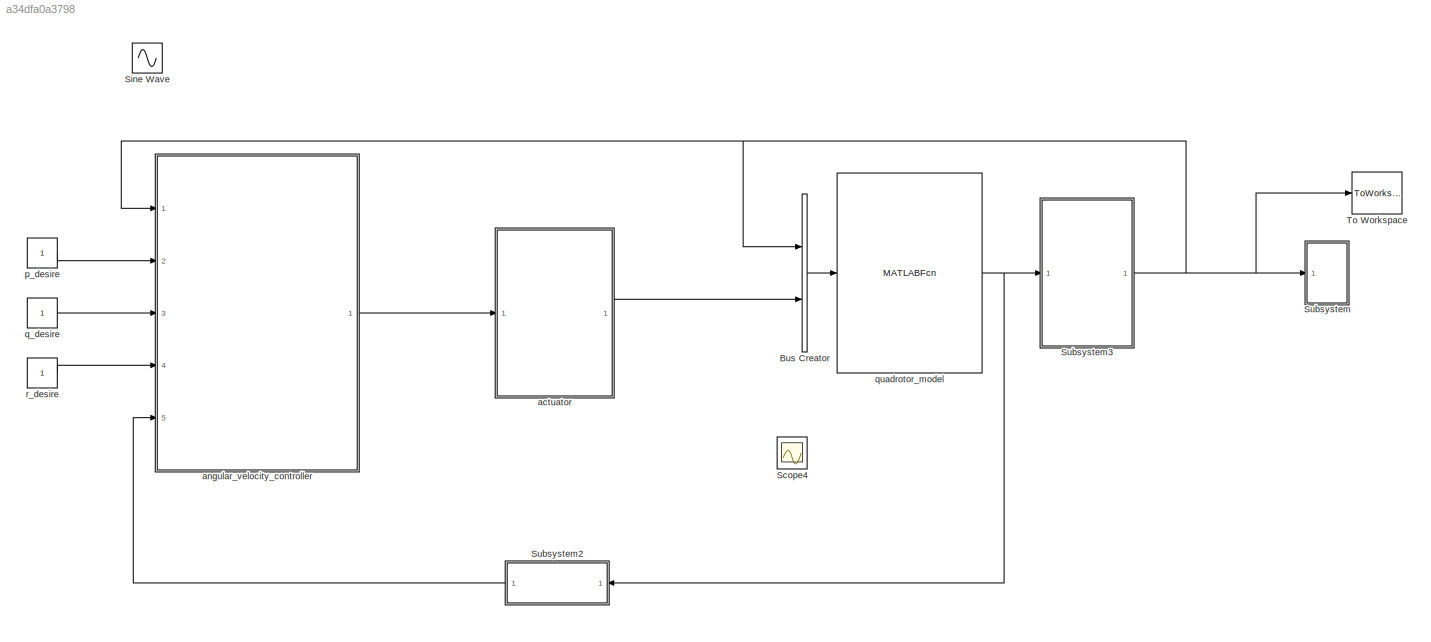
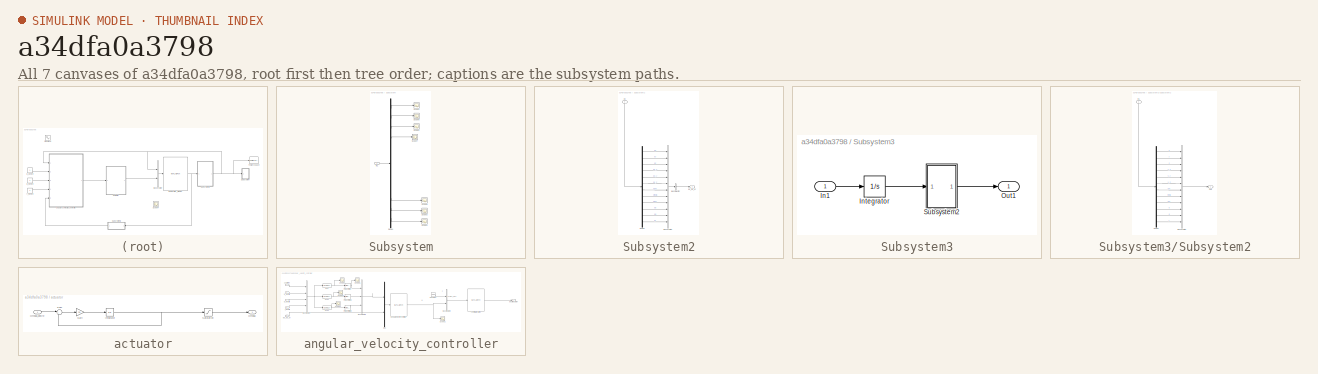
[diagram: thumbnail index - all 7 canvases of the model, root first then tree order]
MODEL slx_a34dfa0a3798
KIND model
CONFIG AbsTol = auto
CONFIG EnableMultiTasking = on
CONFIG FixedStep = auto
CONFIG MaxStep = auto
CONFIG MinStep = auto
CONFIG RelTol = 1e-3
CONFIG SampleTimeConstraint = Unconstrained
CONFIG Solver = ode45
CONFIG SolverName = ode45
CONFIG StartTime = 0.0
CONFIG StopTime = 20
BLOCK [BusCreator] Bus Creator
  DisplayOption = bar
  Inputs = 2
  Ports = [2, 1]
BLOCK [Scope] Scope4
  Floating = off
  NumInputPorts = 1
  Ports = [1]
  ShowLegends = off
  YMax = 4600
  YMin = 4200
BLOCK [Sin] Sine Wave
  Frequency = 10
  Ports = [0, 1]
  SampleTime = 0
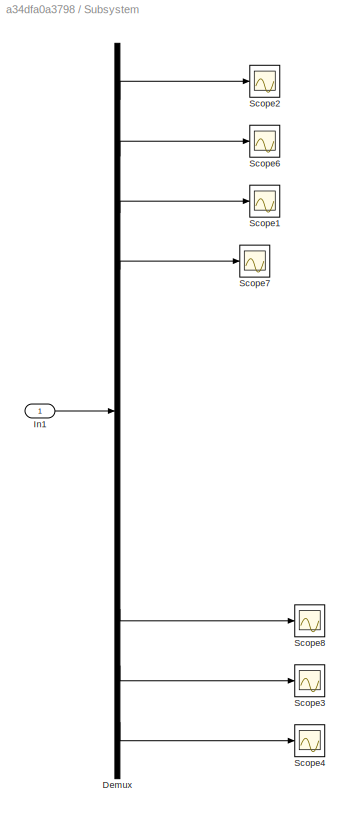
BLOCK [SubSystem] Subsystem
  Ports = [1]
  RequestExecContextInheritance = off
BLOCK [Demux] Subsystem/Demux
  DisplayOption = bar
  Outputs = 12
  Ports = [1, 12]
BLOCK [Inport] Subsystem/In1
  IconDisplay = Port number
BLOCK [Scope] Subsystem/Scope1
  Floating = off
  NumInputPorts = 1
  Ports = [1]
  ShowLegends = off
BLOCK [Scope] Subsystem/Scope2
  Floating = off
  NumInputPorts = 1
  Ports = [1]
  ShowLegends = off
BLOCK [Scope] Subsystem/Scope3
  Floating = off
  NumInputPorts = 1
  Ports = [1]
  ShowLegends = off
BLOCK [Scope] Subsystem/Scope4
  Floating = off
  NumInputPorts = 1
  Ports = [1]
  ShowLegends = off
  YMax = 1.3
  YMin = 0.7
BLOCK [Scope] Subsystem/Scope6
  Floating = off
  NumInputPorts = 1
  Ports = [1]
  ShowLegends = off
BLOCK [Scope] Subsystem/Scope7
  Floating = off
  NumInputPorts = 1
  Ports = [1]
  ShowLegends = off
BLOCK [Scope] Subsystem/Scope8
  Floating = off
  NumInputPorts = 1
  Ports = [1]
  ShowLegends = off
  YMax = 1
  YMin = 0
BLOCK [SubSystem] Subsystem2
  Ports = [1, 1]
  RequestExecContextInheritance = off
BLOCK [BusCreator] Subsystem2/Bus Creator
  DisplayOption = bar
  Inputs = 12
  Ports = [12, 1]
BLOCK [BusSelector] Subsystem2/Bus Selector
  OutputAsBus = on
  OutputSignals = dp,dq,dr
  Ports = [1, 1]
BLOCK [Demux] Subsystem2/Demux
  DisplayOption = bar
  Outputs = 12
  Ports = [1, 12]
BLOCK [Outport] Subsystem2/dp_dq_dr
  IconDisplay = Port number
BLOCK [Inport] Subsystem2/dx
  IconDisplay = Port number
BLOCK [SubSystem] Subsystem3
  Ports = [1, 1]
  RequestExecContextInheritance = off
BLOCK [Inport] Subsystem3/In1
  IconDisplay = Port number
BLOCK [Integrator] Subsystem3/Integrator
  InitialCondition = state_initial
  Ports = [1, 1]
BLOCK [Outport] Subsystem3/Out1
  IconDisplay = Port number
BLOCK [SubSystem] Subsystem3/Subsystem2
  Ports = [1, 1]
  RequestExecContextInheritance = off
BLOCK [BusCreator] Subsystem3/Subsystem2/Bus Creator
  DisplayOption = bar
  Inputs = 12
  Ports = [12, 1]
BLOCK [Demux] Subsystem3/Subsystem2/Demux
  DisplayOption = bar
  Outputs = 12
  Ports = [1, 12]
BLOCK [Inport] Subsystem3/Subsystem2/In1
  IconDisplay = Port number
BLOCK [Outport] Subsystem3/Subsystem2/Out1
  IconDisplay = Port number
BLOCK [ToWorkspace] To Workspace
  MaxDataPoints = inf
  Ports = [1]
  SampleTime = -1
  Save2DSignal = 2-D array (concatenate along first dimension)
  VariableName = local_state
BLOCK [SubSystem] actuator
  Ports = [1, 1]
  RequestExecContextInheritance = off
BLOCK [Gain] actuator/Gain
  Gain = 20
  OutDataTypeStr = Inherit: Inherit via internal rule
  ParamDataTypeStr = Inherit: Inherit via internal rule
  SaturateOnIntegerOverflow = off
BLOCK [Integrator] actuator/Integrator
  InitialCondition = [4477,4477,4477,4477]
  Ports = [1, 1]
BLOCK [Outport] actuator/Omega
  IconDisplay = Port number
BLOCK [Inport] actuator/Omega_desire
  IconDisplay = Port number
BLOCK [Saturate] actuator/Saturation
  InputPortMap = u0
  LowerLimit = 0
  Ports = [1, 1]
  UpperLimit = 10000
BLOCK [Sum] actuator/Sum
  IconShape = round
  InputSameDT = off
  Inputs = |+-
  OutDataTypeStr = Inherit: Inherit via internal rule
  Ports = [2, 1]
  SaturateOnIntegerOverflow = off
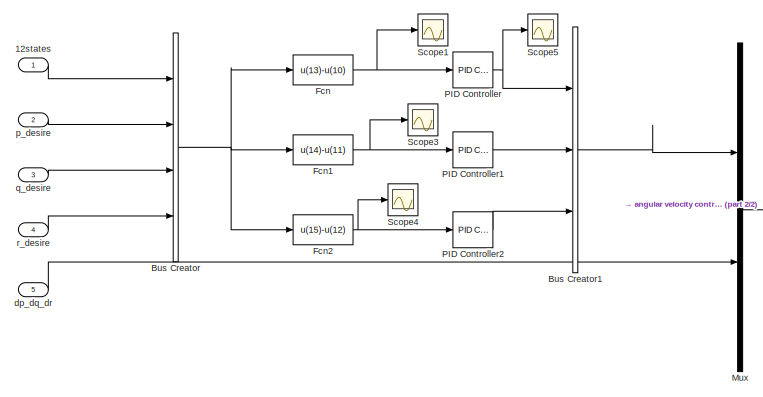
[diagram: angular_velocity_controller - part 1/2, left side, full height]
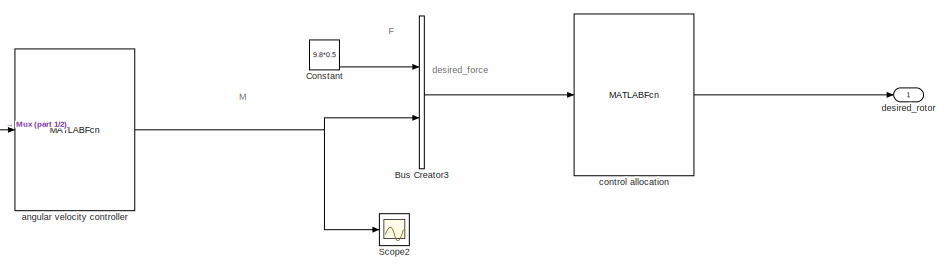
[diagram: angular_velocity_controller - part 2/2, middle right region]
BLOCK [SubSystem] angular_velocity_controller
  Ports = [5, 1]
  RequestExecContextInheritance = off
BLOCK [Inport] angular_velocity_controller/12states
  IconDisplay = Port number
BLOCK [BusCreator] angular_velocity_controller/Bus Creator
  DisplayOption = bar
  Ports = [4, 1]
BLOCK [BusCreator] angular_velocity_controller/Bus Creator1
  DisplayOption = bar
  Inputs = 3
  Ports = [3, 1]
BLOCK [BusCreator] angular_velocity_controller/Bus Creator3
  DisplayOption = bar
  Inputs = 2
  Ports = [2, 1]
BLOCK [Constant] angular_velocity_controller/Constant
  Value = 9.8*0.5
BLOCK [Fcn] angular_velocity_controller/Fcn
  Expr = u(13)-u(10)
BLOCK [Fcn] angular_velocity_controller/Fcn1
  Expr = u(14)-u(11)
BLOCK [Fcn] angular_velocity_controller/Fcn2
  Expr = u(15)-u(12)
BLOCK [Mux] angular_velocity_controller/Mux
  DisplayOption = bar
  Inputs = 2
  Ports = [2, 1]
BLOCK [Reference] angular_velocity_controller/PID Controller  REF=simulink/Continuous/PID Controller
  AntiWindupMode = none
  Controller = PID
  D = k_d_angular_velocity_p
  DOutDataTypeStr = Inherit: Inherit via internal rule
  DOutMax = []
  DOutMin = []
  DParamDataTypeStr = Inherit: Inherit via internal rule
  DParamMax = []
  DParamMin = []
  DifferentiatorICPrevScaledInput = 0
  DifferentiatorOutDataTypeStr = Inherit: Inherit via internal rule
  DifferentiatorOutMax = []
  DifferentiatorOutMin = []
  ExternalReset = none
  FilterContinuousStateAttributes = ''
  FilterMethod = Forward Euler
  FilterOutDataTypeStr = Inherit: Inherit via internal rule
  FilterOutMax = []
  FilterOutMin = []
  FilterRTWStateStorageClass = Auto
  FilterStateMustResolveToSignalObject = off
  Form = Parallel
  I = k_i_angular_velocity_p
  IOutDataTypeStr = Inherit: Inherit via internal rule
  IOutMax = []
  IOutMin = []
  IParamDataTypeStr = Inherit: Inherit via internal rule
  IParamMax = []
  IParamMin = []
  IgnoreLimit = off
  InitialConditionForFilter = 0
  InitialConditionForIntegrator = 0
  InitialConditionSource = internal
  IntegratorContinuousStateAttributes = ''
  IntegratorMethod = Forward Euler
  IntegratorOutDataTypeStr = Inherit: Inherit via internal rule
  IntegratorOutMax = []
  IntegratorOutMin = []
  IntegratorRTWStateStorageClass = Auto
  IntegratorStateMustResolveToSignalObject = off
  Kb = 1
  KbOutDataTypeStr = Inherit: Inherit via internal rule
  KbOutMax = []
  KbOutMin = []
  KbParamDataTypeStr = Inherit: Inherit via internal rule
  KbParamMax = []
  KbParamMin = []
  Kt = 1
  KtOutDataTypeStr = Inherit: Inherit via internal rule
  KtOutMax = []
  KtOutMin = []
  KtParamDataTypeStr = Inherit: Inherit via internal rule
  KtParamMax = []
  KtParamMin = []
  LimitOutput = off
  LinearizeAsGain = on
  LockScale = off
  LowerSaturationLimit = -inf
  N = 100
  NOutDataTypeStr = Inherit: Inherit via internal rule
  NOutMax = []
  NOutMin = []
  NParamDataTypeStr = Inherit: Inherit via internal rule
  NParamMax = []
  NParamMin = []
  P = k_p_angular_velocity_p
  POutDataTypeStr = Inherit: Inherit via internal rule
  POutMax = []
  POutMin = []
  PParamDataTypeStr = Inherit: Inherit via internal rule
  PParamMax = []
  PParamMin = []
  Ports = [1, 1]
  RndMeth = Floor
  SampleTime = -1
  SaturateOnIntegerOverflow = off
  SaturationOutDataTypeStr = Inherit: Same as input
  SaturationOutMax = []
  SaturationOutMin = []
  SourceBlock = simulink/Continuous/PID Controller
  SourceType = PID 1dof
  SumAccumDataTypeStr = Inherit: Inherit via internal rule
  SumDAccumDataTypeStr = Inherit: Inherit via internal rule
  SumDOutDataTypeStr = Inherit: Inherit via internal rule
  SumDOutMax = []
  SumDOutMin = []
  SumI1AccumDataTypeStr = Inherit: Inherit via internal rule
  SumI1OutDataTypeStr = Inherit: Inherit via internal rule
  SumI1OutMax = []
  SumI1OutMin = []
  SumI2AccumDataTypeStr = Inherit: Inherit via internal rule
  SumI2OutDataTypeStr = Inherit: Inherit via internal rule
  SumI2OutMax = []
  SumI2OutMin = []
  SumI3AccumDataTypeStr = Inherit: Inherit via internal rule
  SumI3OutDataTypeStr = Inherit: Inherit via internal rule
  SumI3OutMax = []
  SumI3OutMin = []
  SumOutDataTypeStr = Inherit: Inherit via internal rule
  SumOutMax = []
  SumOutMin = []
  TimeDomain = Continuous-time
  TrackingMode = off
  UpperSaturationLimit = inf
  UseFilter = on
  ZeroCross = on
BLOCK [Reference] angular_velocity_controller/PID Controller1  REF=simulink/Continuous/PID Controller
  AntiWindupMode = none
  Controller = PID
  D = k_d_angular_velocity_q
  DOutDataTypeStr = Inherit: Inherit via internal rule
  DOutMax = []
  DOutMin = []
  DParamDataTypeStr = Inherit: Inherit via internal rule
  DParamMax = []
  DParamMin = []
  DifferentiatorICPrevScaledInput = 0
  DifferentiatorOutDataTypeStr = Inherit: Inherit via internal rule
  DifferentiatorOutMax = []
  DifferentiatorOutMin = []
  ExternalReset = none
  FilterContinuousStateAttributes = ''
  FilterMethod = Forward Euler
  FilterOutDataTypeStr = Inherit: Inherit via internal rule
  FilterOutMax = []
  FilterOutMin = []
  FilterRTWStateStorageClass = Auto
  FilterStateMustResolveToSignalObject = off
  Form = Parallel
  I = k_i_angular_velocity_q
  IOutDataTypeStr = Inherit: Inherit via internal rule
  IOutMax = []
  IOutMin = []
  IParamDataTypeStr = Inherit: Inherit via internal rule
  IParamMax = []
  IParamMin = []
  IgnoreLimit = off
  InitialConditionForFilter = 0
  InitialConditionForIntegrator = 0
  InitialConditionSource = internal
  IntegratorContinuousStateAttributes = ''
  IntegratorMethod = Forward Euler
  IntegratorOutDataTypeStr = Inherit: Inherit via internal rule
  IntegratorOutMax = []
  IntegratorOutMin = []
  IntegratorRTWStateStorageClass = Auto
  IntegratorStateMustResolveToSignalObject = off
  Kb = 1
  KbOutDataTypeStr = Inherit: Inherit via internal rule
  KbOutMax = []
  KbOutMin = []
  KbParamDataTypeStr = Inherit: Inherit via internal rule
  KbParamMax = []
  KbParamMin = []
  Kt = 1
  KtOutDataTypeStr = Inherit: Inherit via internal rule
  KtOutMax = []
  KtOutMin = []
  KtParamDataTypeStr = Inherit: Inherit via internal rule
  KtParamMax = []
  KtParamMin = []
  LimitOutput = off
  LinearizeAsGain = on
  LockScale = off
  LowerSaturationLimit = -inf
  N = 100
  NOutDataTypeStr = Inherit: Inherit via internal rule
  NOutMax = []
  NOutMin = []
  NParamDataTypeStr = Inherit: Inherit via internal rule
  NParamMax = []
  NParamMin = []
  P = k_p_angular_velocity_q
  POutDataTypeStr = Inherit: Inherit via internal rule
  POutMax = []
  POutMin = []
  PParamDataTypeStr = Inherit: Inherit via internal rule
  PParamMax = []
  PParamMin = []
  Ports = [1, 1]
  RndMeth = Floor
  SampleTime = -1
  SaturateOnIntegerOverflow = off
  SaturationOutDataTypeStr = Inherit: Same as input
  SaturationOutMax = []
  SaturationOutMin = []
  SourceBlock = simulink/Continuous/PID Controller
  SourceType = PID 1dof
  SumAccumDataTypeStr = Inherit: Inherit via internal rule
  SumDAccumDataTypeStr = Inherit: Inherit via internal rule
  SumDOutDataTypeStr = Inherit: Inherit via internal rule
  SumDOutMax = []
  SumDOutMin = []
  SumI1AccumDataTypeStr = Inherit: Inherit via internal rule
  SumI1OutDataTypeStr = Inherit: Inherit via internal rule
  SumI1OutMax = []
  SumI1OutMin = []
  SumI2AccumDataTypeStr = Inherit: Inherit via internal rule
  SumI2OutDataTypeStr = Inherit: Inherit via internal rule
  SumI2OutMax = []
  SumI2OutMin = []
  SumI3AccumDataTypeStr = Inherit: Inherit via internal rule
  SumI3OutDataTypeStr = Inherit: Inherit via internal rule
  SumI3OutMax = []
  SumI3OutMin = []
  SumOutDataTypeStr = Inherit: Inherit via internal rule
  SumOutMax = []
  SumOutMin = []
  TimeDomain = Continuous-time
  TrackingMode = off
  UpperSaturationLimit = inf
  UseFilter = on
  ZeroCross = on
BLOCK [Reference] angular_velocity_controller/PID Controller2  REF=simulink/Continuous/PID Controller
  AntiWindupMode = none
  Controller = PID
  D = k_d_angular_velocity_r
  DOutDataTypeStr = Inherit: Inherit via internal rule
  DOutMax = []
  DOutMin = []
  DParamDataTypeStr = Inherit: Inherit via internal rule
  DParamMax = []
  DParamMin = []
  DifferentiatorICPrevScaledInput = 0
  DifferentiatorOutDataTypeStr = Inherit: Inherit via internal rule
  DifferentiatorOutMax = []
  DifferentiatorOutMin = []
  ExternalReset = none
  FilterContinuousStateAttributes = ''
  FilterMethod = Forward Euler
  FilterOutDataTypeStr = Inherit: Inherit via internal rule
  FilterOutMax = []
  FilterOutMin = []
  FilterRTWStateStorageClass = Auto
  FilterStateMustResolveToSignalObject = off
  Form = Parallel
  I = k_i_angular_velocity_r
  IOutDataTypeStr = Inherit: Inherit via internal rule
  IOutMax = []
  IOutMin = []
  IParamDataTypeStr = Inherit: Inherit via internal rule
  IParamMax = []
  IParamMin = []
  IgnoreLimit = off
  InitialConditionForFilter = 0
  InitialConditionForIntegrator = 0
  InitialConditionSource = internal
  IntegratorContinuousStateAttributes = ''
  IntegratorMethod = Forward Euler
  IntegratorOutDataTypeStr = Inherit: Inherit via internal rule
  IntegratorOutMax = []
  IntegratorOutMin = []
  IntegratorRTWStateStorageClass = Auto
  IntegratorStateMustResolveToSignalObject = off
  Kb = 1
  KbOutDataTypeStr = Inherit: Inherit via internal rule
  KbOutMax = []
  KbOutMin = []
  KbParamDataTypeStr = Inherit: Inherit via internal rule
  KbParamMax = []
  KbParamMin = []
  Kt = 1
  KtOutDataTypeStr = Inherit: Inherit via internal rule
  KtOutMax = []
  KtOutMin = []
  KtParamDataTypeStr = Inherit: Inherit via internal rule
  KtParamMax = []
  KtParamMin = []
  LimitOutput = off
  LinearizeAsGain = on
  LockScale = off
  LowerSaturationLimit = -inf
  N = 100
  NOutDataTypeStr = Inherit: Inherit via internal rule
  NOutMax = []
  NOutMin = []
  NParamDataTypeStr = Inherit: Inherit via internal rule
  NParamMax = []
  NParamMin = []
  P = k_p_angular_velocity_r
  POutDataTypeStr = Inherit: Inherit via internal rule
  POutMax = []
  POutMin = []
  PParamDataTypeStr = Inherit: Inherit via internal rule
  PParamMax = []
  PParamMin = []
  Ports = [1, 1]
  RndMeth = Floor
  SampleTime = -1
  SaturateOnIntegerOverflow = off
  SaturationOutDataTypeStr = Inherit: Same as input
  SaturationOutMax = []
  SaturationOutMin = []
  SourceBlock = simulink/Continuous/PID Controller
  SourceType = PID 1dof
  SumAccumDataTypeStr = Inherit: Inherit via internal rule
  SumDAccumDataTypeStr = Inherit: Inherit via internal rule
  SumDOutDataTypeStr = Inherit: Inherit via internal rule
  SumDOutMax = []
  SumDOutMin = []
  SumI1AccumDataTypeStr = Inherit: Inherit via internal rule
  SumI1OutDataTypeStr = Inherit: Inherit via internal rule
  SumI1OutMax = []
  SumI1OutMin = []
  SumI2AccumDataTypeStr = Inherit: Inherit via internal rule
  SumI2OutDataTypeStr = Inherit: Inherit via internal rule
  SumI2OutMax = []
  SumI2OutMin = []
  SumI3AccumDataTypeStr = Inherit: Inherit via internal rule
  SumI3OutDataTypeStr = Inherit: Inherit via internal rule
  SumI3OutMax = []
  SumI3OutMin = []
  SumOutDataTypeStr = Inherit: Inherit via internal rule
  SumOutMax = []
  SumOutMin = []
  TimeDomain = Continuous-time
  TrackingMode = off
  UpperSaturationLimit = inf
  UseFilter = on
  ZeroCross = on
BLOCK [Scope] angular_velocity_controller/Scope1
  Floating = off
  NumInputPorts = 1
  Ports = [1]
  SaveName = ScopeData1
  ShowLegends = off
  YMax = 1
  YMin = 0.4
BLOCK [Scope] angular_velocity_controller/Scope2
  Floating = off
  NumInputPorts = 1
  Ports = [1]
  ShowLegends = off
BLOCK [Scope] angular_velocity_controller/Scope3
  Floating = off
  NumInputPorts = 1
  Ports = [1]
  SaveName = ScopeData2
  ShowLegends = off
BLOCK [Scope] angular_velocity_controller/Scope4
  Floating = off
  NumInputPorts = 1
  Ports = [1]
  SaveName = ScopeData3
  ShowLegends = off
BLOCK [Scope] angular_velocity_controller/Scope5
  Floating = off
  NumInputPorts = 1
  Ports = [1]
  SaveName = ScopeData4
  ShowLegends = off
  YMax = 1
  YMin = 0.4
BLOCK [MATLABFcn] angular_velocity_controller/angular  velocity controller
  MATLABFcn = controller_angular_velocity
  Ports = [1, 1]
BLOCK [MATLABFcn] angular_velocity_controller/control allocation
  MATLABFcn = convert_force_2omega
  Ports = [1, 1]
BLOCK [Outport] angular_velocity_controller/desired_rotor
  IconDisplay = Port number
BLOCK [Inport] angular_velocity_controller/dp_dq_dr
  IconDisplay = Port number
  Port = 5
BLOCK [Inport] angular_velocity_controller/p_desire
  IconDisplay = Port number
  Port = 2
BLOCK [Inport] angular_velocity_controller/q_desire
  IconDisplay = Port number
  Port = 3
BLOCK [Inport] angular_velocity_controller/r_desire
  IconDisplay = Port number
  Port = 4
BLOCK [Constant] p_desire
BLOCK [Constant] q_desire
BLOCK [MATLABFcn] quadrotor_model
  MATLABFcn = quadrotor_dynamics
  Ports = [1, 1]
BLOCK [Constant] r_desire
ANNOTATION angular_velocity_controller: F
ANNOTATION angular_velocity_controller: M
ANNOTATION angular_velocity_controller: desired_force
LINE Bus Creator:1 -> quadrotor_model:1
LINE Subsystem/Demux:1 -> Subsystem/Scope2:1
LINE Subsystem/Demux:10 -> Subsystem/Scope8:1
LINE Subsystem/Demux:11 -> Subsystem/Scope3:1
LINE Subsystem/Demux:12 -> Subsystem/Scope4:1
LINE Subsystem/Demux:2 -> Subsystem/Scope6:1
LINE Subsystem/Demux:3 -> Subsystem/Scope1:1
LINE Subsystem/Demux:4 -> Subsystem/Scope7:1
LINE Subsystem/In1:1 -> Subsystem/Demux:1
LINE Subsystem2/Bus Creator:1 -> Subsystem2/Bus Selector:1
LINE Subsystem2/Bus Selector:1 -> Subsystem2/dp_dq_dr:1
LINE Subsystem2/Demux:1 -> Subsystem2/Bus Creator:1
LINE Subsystem2/Demux:10 -> Subsystem2/Bus Creator:10
LINE Subsystem2/Demux:11 -> Subsystem2/Bus Creator:11
LINE Subsystem2/Demux:12 -> Subsystem2/Bus Creator:12
LINE Subsystem2/Demux:2 -> Subsystem2/Bus Creator:2
LINE Subsystem2/Demux:3 -> Subsystem2/Bus Creator:3
LINE Subsystem2/Demux:4 -> Subsystem2/Bus Creator:4
LINE Subsystem2/Demux:5 -> Subsystem2/Bus Creator:5
LINE Subsystem2/Demux:6 -> Subsystem2/Bus Creator:6
LINE Subsystem2/Demux:7 -> Subsystem2/Bus Creator:7
LINE Subsystem2/Demux:8 -> Subsystem2/Bus Creator:8
LINE Subsystem2/Demux:9 -> Subsystem2/Bus Creator:9
LINE Subsystem2/dx:1 -> Subsystem2/Demux:1
LINE Subsystem2:1 -> angular_velocity_controller:5
LINE Subsystem3/In1:1 -> Subsystem3/Integrator:1
LINE Subsystem3/Integrator:1 -> Subsystem3/Subsystem2:1
LINE Subsystem3/Subsystem2/Bus Creator:1 -> Subsystem3/Subsystem2/Out1:1
LINE Subsystem3/Subsystem2/Demux:1 -> Subsystem3/Subsystem2/Bus Creator:1
LINE Subsystem3/Subsystem2/Demux:10 -> Subsystem3/Subsystem2/Bus Creator:10
LINE Subsystem3/Subsystem2/Demux:11 -> Subsystem3/Subsystem2/Bus Creator:11
LINE Subsystem3/Subsystem2/Demux:12 -> Subsystem3/Subsystem2/Bus Creator:12
LINE Subsystem3/Subsystem2/Demux:2 -> Subsystem3/Subsystem2/Bus Creator:2
LINE Subsystem3/Subsystem2/Demux:3 -> Subsystem3/Subsystem2/Bus Creator:3
LINE Subsystem3/Subsystem2/Demux:4 -> Subsystem3/Subsystem2/Bus Creator:4
LINE Subsystem3/Subsystem2/Demux:5 -> Subsystem3/Subsystem2/Bus Creator:5
LINE Subsystem3/Subsystem2/Demux:6 -> Subsystem3/Subsystem2/Bus Creator:6
LINE Subsystem3/Subsystem2/Demux:7 -> Subsystem3/Subsystem2/Bus Creator:7
LINE Subsystem3/Subsystem2/Demux:8 -> Subsystem3/Subsystem2/Bus Creator:8
LINE Subsystem3/Subsystem2/Demux:9 -> Subsystem3/Subsystem2/Bus Creator:9
LINE Subsystem3/Subsystem2/In1:1 -> Subsystem3/Subsystem2/Demux:1
LINE Subsystem3/Subsystem2:1 -> Subsystem3/Out1:1
NET Subsystem3:1 -> Bus Creator:1, Subsystem:1, To Workspace:1, angular_velocity_controller:1
LINE actuator/Gain:1 -> actuator/Integrator:1
NET actuator/Integrator:1 -> actuator/Saturation:1, actuator/Sum:2
LINE actuator/Omega_desire:1 -> actuator/Sum:1
LINE actuator/Saturation:1 -> actuator/Omega:1
LINE actuator/Sum:1 -> actuator/Gain:1
LINE actuator:1 -> Bus Creator:2
LINE angular_velocity_controller/12states:1 -> angular_velocity_controller/Bus Creator:1
LINE angular_velocity_controller/Bus Creator1:1 -> angular_velocity_controller/Mux:1
LINE angular_velocity_controller/Bus Creator3:1 -> angular_velocity_controller/control allocation:1
NET angular_velocity_controller/Bus Creator:1 -> angular_velocity_controller/Fcn1:1, angular_velocity_controller/Fcn2:1, angular_velocity_controller/Fcn:1
LINE angular_velocity_controller/Constant:1 -> angular_velocity_controller/Bus Creator3:1
NET angular_velocity_controller/Fcn1:1 -> angular_velocity_controller/PID Controller1:1, angular_velocity_controller/Scope3:1
NET angular_velocity_controller/Fcn2:1 -> angular_velocity_controller/PID Controller2:1, angular_velocity_controller/Scope4:1
NET angular_velocity_controller/Fcn:1 -> angular_velocity_controller/PID Controller:1, angular_velocity_controller/Scope1:1
LINE angular_velocity_controller/Mux:1 -> angular_velocity_controller/angular  velocity controller:1
LINE angular_velocity_controller/PID Controller1:1 -> angular_velocity_controller/Bus Creator1:2
LINE angular_velocity_controller/PID Controller2:1 -> angular_velocity_controller/Bus Creator1:3
NET angular_velocity_controller/PID Controller:1 -> angular_velocity_controller/Bus Creator1:1, angular_velocity_controller/Scope5:1
NET angular_velocity_controller/angular  velocity controller:1 -> angular_velocity_controller/Bus Creator3:2, angular_velocity_controller/Scope2:1
LINE angular_velocity_controller/control allocation:1 -> angular_velocity_controller/desired_rotor:1
LINE angular_velocity_controller/dp_dq_dr:1 -> angular_velocity_controller/Mux:2
LINE angular_velocity_controller/p_desire:1 -> angular_velocity_controller/Bus Creator:2
LINE angular_velocity_controller/q_desire:1 -> angular_velocity_controller/Bus Creator:3
LINE angular_velocity_controller/r_desire:1 -> angular_velocity_controller/Bus Creator:4
LINE angular_velocity_controller:1 -> actuator:1
LINE p_desire:1 -> angular_velocity_controller:2
LINE q_desire:1 -> angular_velocity_controller:3
NET quadrotor_model:1 -> Subsystem2:1, Subsystem3:1
LINE r_desire:1 -> angular_velocity_controller:4
note: NET lines group one-source signal fan-out (src -> all destinations, sorted); 1:1 wires keep LINE
